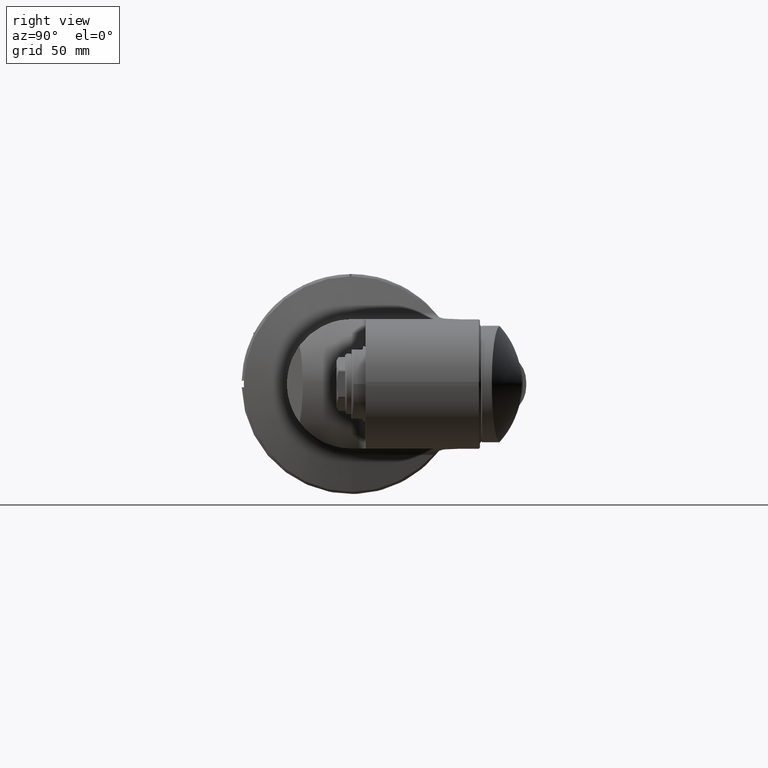
[diagram: clean part render]
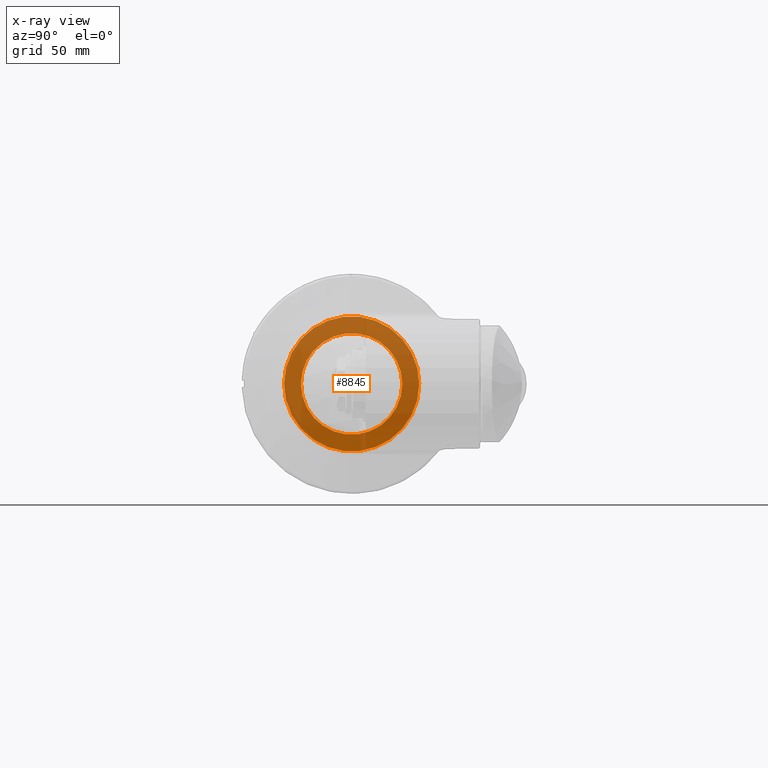
[diagram: x-ray — body ghosted, one internal face saturated and labeled with its STEP entity id]
A machine part, right view, then the same camera in x-ray: the body is ghosted and one INTERNAL B-rep face — a face not visible from any outside direction — is saturated and labeled: STEP entity #8845.
In plain terms, the highlighted planar face has unit normal (1, 0, 0).
Its self-contained STEP definition (entity closure, byte-faithful):
#1748=FACE_BOUND('',#2820,.T.);
#2237=FACE_OUTER_BOUND('',#2819,.T.);
#2819=EDGE_LOOP('',(#7952));
#2820=EDGE_LOOP('',(#7953));
#3323=CIRCLE('',#9862,31.35);
#3343=CIRCLE('',#9897,23.5);
#4147=VERTEX_POINT('',#17769);
#4169=VERTEX_POINT('',#17930);
#5404=EDGE_CURVE('',#4147,#4147,#3323,.T.);
#5443=EDGE_CURVE('',#4169,#4169,#3343,.T.);
#7952=ORIENTED_EDGE('',*,*,#5404,.T.);
#7953=ORIENTED_EDGE('',*,*,#5443,.T.);
#8347=PLANE('',#9896);
#8845=ADVANCED_FACE('',(#2237,#1748),#8347,.T.);
#9862=AXIS2_PLACEMENT_3D('',#17771,#12398,#12399);
#9896=AXIS2_PLACEMENT_3D('',#17929,#12477,#12478);
#9897=AXIS2_PLACEMENT_3D('',#17931,#12479,#12480);
#12398=DIRECTION('center_axis',(1.,0.,0.));
#12399=DIRECTION('ref_axis',(0.,1.,0.));
#12477=DIRECTION('center_axis',(1.,0.,0.));
#12478=DIRECTION('ref_axis',(0.,1.,0.));
#12479=DIRECTION('center_axis',(-1.,0.,0.));
#12480=DIRECTION('ref_axis',(0.,-1.,0.));
#17769=CARTESIAN_POINT('',(-158.,31.35,0.));
#17771=CARTESIAN_POINT('Origin',(-158.,0.,0.));
#17929=CARTESIAN_POINT('Origin',(-158.,0.,0.));
#17930=CARTESIAN_POINT('',(-158.,-23.5,0.));
#17931=CARTESIAN_POINT('Origin',(-158.,0.,0.));